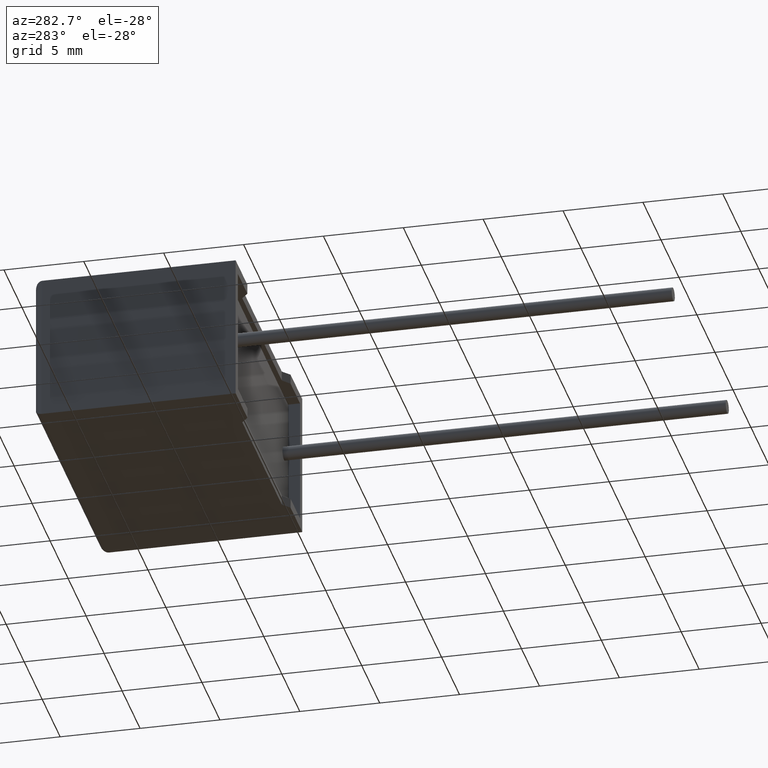
[diagram: clean part render]
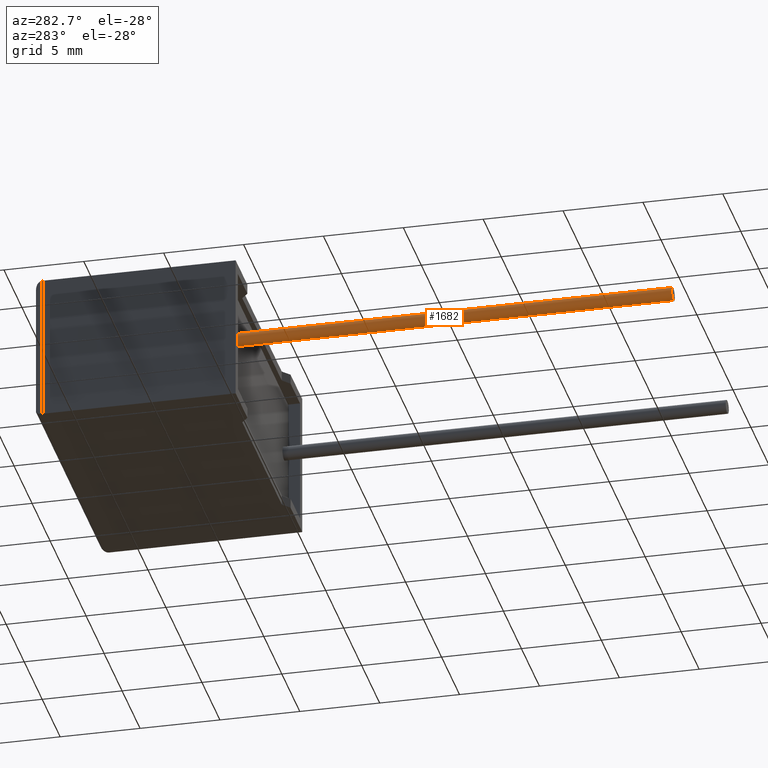
[diagram: same view with one face highlighted and labeled with its STEP entity id]
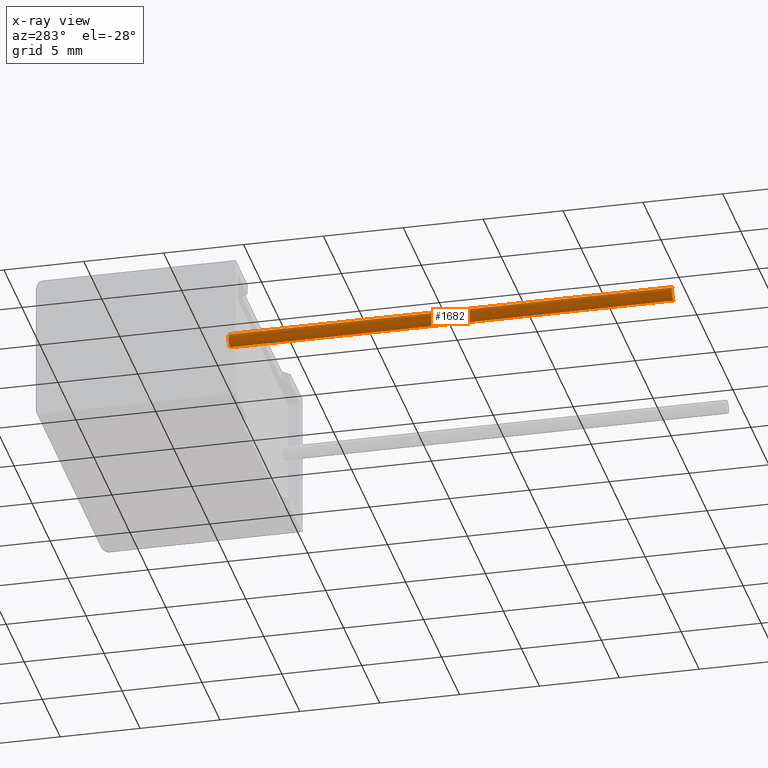
[diagram: x-ray of the same camera — body ghosted, the highlighted face saturated]
A machine part, auxiliary view. The second image highlights one B-rep face of the part: STEP entity #1682.
The next image is the same camera in x-ray: the body ghosted, the highlighted face saturated — about 0% of this face is hidden behind the body in this view.
In plain terms, the highlighted cylindrical surface (edge-blend (fillet) strip) has radius 0.425 mm, axis along (-0, 1, -0).
Its self-contained STEP definition (entity closure, byte-faithful):
#171 = FACE_OUTER_BOUND ( 'NONE', #2618, .T. ) ;
#191 = CARTESIAN_POINT ( 'NONE',  ( 1.749999999999999800, -27.00000000000000000, 4.174999999999999800 ) ) ;
#220 = ORIENTED_EDGE ( 'NONE', *, *, #236, .T. ) ;
#236 = EDGE_CURVE ( 'NONE', #1697, #932, #329, .T. ) ;
#329 = LINE ( 'NONE', #3041, #2925 ) ;
#482 = DIRECTION ( 'NONE',  ( 0.0000000000000000000, 0.0000000000000000000, -1.000000000000000000 ) ) ;
#822 = ORIENTED_EDGE ( 'NONE', *, *, #2304, .F. ) ;
#851 = VECTOR ( 'NONE', #1015, 1000.000000000000000 ) ;
#879 = CARTESIAN_POINT ( 'NONE',  ( 1.749999999999999800, 0.7500000000000000000, 5.025000000000000400 ) ) ;
#891 = EDGE_CURVE ( 'NONE', #932, #978, #1042, .T. ) ;
#897 = CARTESIAN_POINT ( 'NONE',  ( 1.749999999999999800, -27.00000000000000000, 5.025000000000000400 ) ) ;
#905 = CARTESIAN_POINT ( 'NONE',  ( 1.749999999999999800, -27.00000000000000000, 4.599999999999999600 ) ) ;
#932 = VERTEX_POINT ( 'NONE', #879 ) ;
#978 = VERTEX_POINT ( 'NONE', #1347 ) ;
#1000 = AXIS2_PLACEMENT_3D ( 'NONE', #2398, #1921, #482 ) ;
#1015 = DIRECTION ( 'NONE',  ( -0.0000000000000000000, 1.000000000000000000, -0.0000000000000000000 ) ) ;
#1042 = CIRCLE ( 'NONE', #1000, 0.4250000000000000400 ) ;
#1070 = CYLINDRICAL_SURFACE ( 'NONE', #2353, 0.4250000000000000400 ) ;
#1286 = ORIENTED_EDGE ( 'NONE', *, *, #2078, .F. ) ;
#1347 = CARTESIAN_POINT ( 'NONE',  ( 1.749999999999999800, 0.7500000000000000000, 4.174999999999999800 ) ) ;
#1432 = LINE ( 'NONE', #2924, #851 ) ;
#1470 = CIRCLE ( 'NONE', #2955, 0.4250000000000000400 ) ;
#1521 = DIRECTION ( 'NONE',  ( 0.0000000000000000000, 0.0000000000000000000, -1.000000000000000000 ) ) ;
#1532 = DIRECTION ( 'NONE',  ( 0.0000000000000000000, -1.000000000000000000, 0.0000000000000000000 ) ) ;
#1668 = DIRECTION ( 'NONE',  ( -0.0000000000000000000, 1.000000000000000000, -0.0000000000000000000 ) ) ;
#1682 = ADVANCED_FACE ( 'NONE', ( #171 ), #1070, .T. ) ;
#1697 = VERTEX_POINT ( 'NONE', #897 ) ;
#1750 = DIRECTION ( 'NONE',  ( 0.0000000000000000000, 0.0000000000000000000, 1.000000000000000000 ) ) ;
#1755 = ORIENTED_EDGE ( 'NONE', *, *, #891, .T. ) ;
#1921 = DIRECTION ( 'NONE',  ( 0.0000000000000000000, -1.000000000000000000, 0.0000000000000000000 ) ) ;
#2000 = VERTEX_POINT ( 'NONE', #191 ) ;
#2078 = EDGE_CURVE ( 'NONE', #2000, #978, #1432, .T. ) ;
#2304 = EDGE_CURVE ( 'NONE', #1697, #2000, #1470, .T. ) ;
#2353 = AXIS2_PLACEMENT_3D ( 'NONE', #905, #3030, #1750 ) ;
#2398 = CARTESIAN_POINT ( 'NONE',  ( 1.749999999999999800, 0.7500000000000000000, 4.599999999999999600 ) ) ;
#2618 = EDGE_LOOP ( 'NONE', ( #1286, #822, #220, #1755 ) ) ;
#2684 = CARTESIAN_POINT ( 'NONE',  ( 1.749999999999999800, -27.00000000000000000, 4.599999999999999600 ) ) ;
#2924 = CARTESIAN_POINT ( 'NONE',  ( 1.749999999999999800, -27.00000000000000000, 4.174999999999999800 ) ) ;
#2925 = VECTOR ( 'NONE', #1668, 1000.000000000000000 ) ;
#2955 = AXIS2_PLACEMENT_3D ( 'NONE', #2684, #1532, #1521 ) ;
#3030 = DIRECTION ( 'NONE',  ( -0.0000000000000000000, 1.000000000000000000, -0.0000000000000000000 ) ) ;
#3041 = CARTESIAN_POINT ( 'NONE',  ( 1.749999999999999800, -27.00000000000000000, 5.025000000000000400 ) ) ;